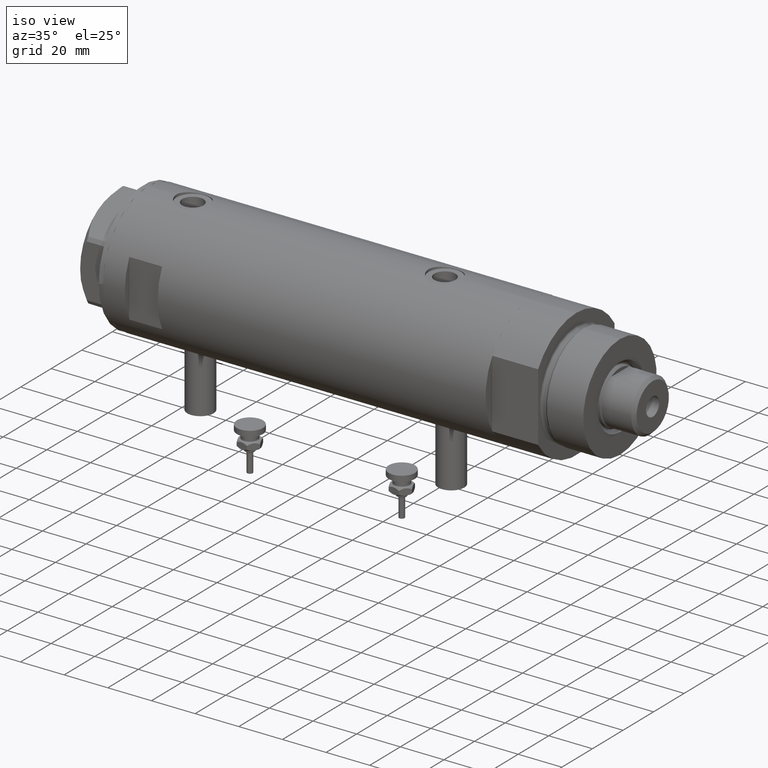
[diagram: clean part render]
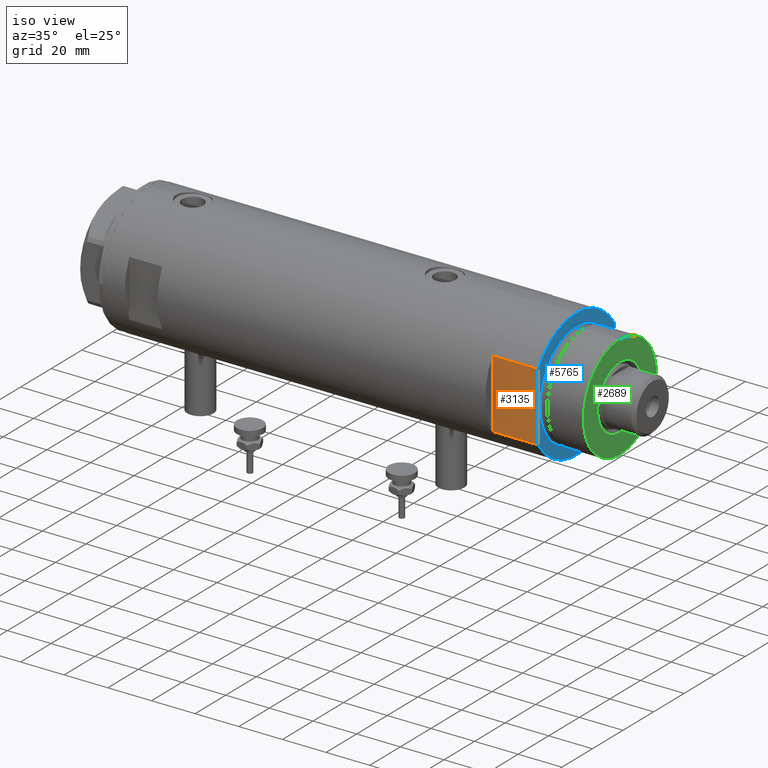
[diagram: same view with three faces highlighted in distinct colors, each labeled with its STEP entity id]
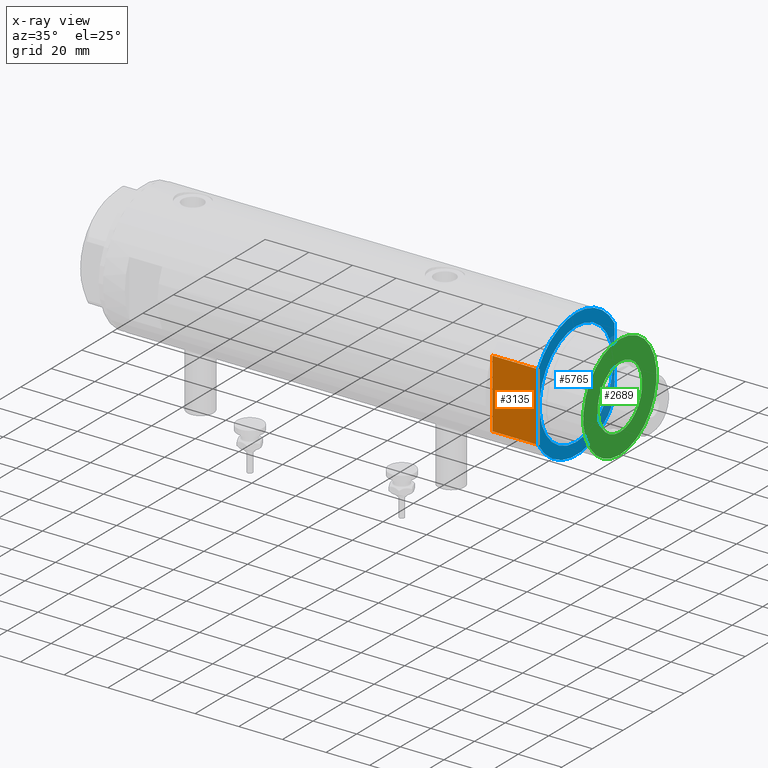
[diagram: x-ray of the same camera — body ghosted, the three highlighted faces saturated]
A machine part, iso view with three faces highlighted in distinct colors.
The next image is the same camera in x-ray (body ghosted, the three faces saturated) — at least one of them is partly hidden behind the body in this view.
Their STEP definitions:

[orange] entity #3135 — the highlighted planar face has unit normal (-0, 1, 0).
#67 = VERTEX_POINT ( 'NONE', #2100 ) ;
#301 = ORIENTED_EDGE ( 'NONE', *, *, #1220, .T. ) ;
#350 = DIRECTION ( 'NONE',  ( -0.000000000000000000, -0.000000000000000000, 1.000000000000000000 ) ) ;
#434 = DIRECTION ( 'NONE',  ( -1.000000000000000000, -0.000000000000000000, -0.000000000000000000 ) ) ;
#689 = CARTESIAN_POINT ( 'NONE',  ( -15.66045976336583045, -24.99999999999999645, 20.99999999999999645 ) ) ;
#732 = DIRECTION ( 'NONE',  ( -1.000000000000000000, -0.000000000000000000, -0.000000000000000000 ) ) ;
#964 = LINE ( 'NONE', #2803, #1106 ) ;
#1106 = VECTOR ( 'NONE', #2715, 1000.000000000000000 ) ;
#1190 = DIRECTION ( 'NONE',  ( -0.000000000000000000, -0.000000000000000000, 1.000000000000000000 ) ) ;
#1220 = EDGE_CURVE ( 'NONE', #67, #3294, #3499, .T. ) ;
#1554 = VECTOR ( 'NONE', #732, 1000.000000000000000 ) ;
#1566 = CARTESIAN_POINT ( 'NONE',  ( -15.66045976336583401, -25.00000000000000000, 0.000000000000000000 ) ) ;
#1618 = PLANE ( 'NONE',  #4810 ) ;
#1673 = CARTESIAN_POINT ( 'NONE',  ( 15.66045976336583401, -25.00000000000000000, 0.000000000000000000 ) ) ;
#2026 = LINE ( 'NONE', #4683, #4710 ) ;
#2100 = CARTESIAN_POINT ( 'NONE',  ( 15.66045976336583045, -25.00000000000000000, 21.00000000000000355 ) ) ;
#2404 = VERTEX_POINT ( 'NONE', #2996 ) ;
#2415 = EDGE_CURVE ( 'NONE', #5177, #2675, #2904, .T. ) ;
#2675 = VERTEX_POINT ( 'NONE', #3764 ) ;
#2715 = DIRECTION ( 'NONE',  ( -1.000000000000000000, -0.000000000000000000, -0.000000000000000000 ) ) ;
#2803 = CARTESIAN_POINT ( 'NONE',  ( -15.66045976336583401, -25.00000000000000000, 0.000000000000000000 ) ) ;
#2840 = ORIENTED_EDGE ( 'NONE', *, *, #5491, .F. ) ;
#2899 = VECTOR ( 'NONE', #350, 1000.000000000000000 ) ;
#2904 = LINE ( 'NONE', #1566, #1554 ) ;
#2996 = CARTESIAN_POINT ( 'NONE',  ( 15.66045976336583401, -25.00000000000000000, 0.000000000000000000 ) ) ;
#3135 = ADVANCED_FACE ( 'NONE', ( #3997 ), #1618, .F. ) ;
#3254 = EDGE_CURVE ( 'NONE', #3497, #5177, #2026, .T. ) ;
#3294 = VERTEX_POINT ( 'NONE', #689 ) ;
#3419 = DIRECTION ( 'NONE',  ( -0.000000000000000000, 1.000000000000000000, 0.000000000000000000 ) ) ;
#3471 = CARTESIAN_POINT ( 'NONE',  ( 7.141428428542853091, -25.00000000000000000, 0.000000000000000000 ) ) ;
#3473 = ORIENTED_EDGE ( 'NONE', *, *, #3494, .T. ) ;
#3494 = EDGE_CURVE ( 'NONE', #2404, #67, #3918, .T. ) ;
#3497 = VERTEX_POINT ( 'NONE', #3471 ) ;
#3499 = LINE ( 'NONE', #4521, #3635 ) ;
#3635 = VECTOR ( 'NONE', #434, 1000.000000000000000 ) ;
#3764 = CARTESIAN_POINT ( 'NONE',  ( -15.66045976336582690, -25.00000000000000000, 0.000000000000000000 ) ) ;
#3768 = VECTOR ( 'NONE', #1190, 1000.000000000000000 ) ;
#3918 = LINE ( 'NONE', #1673, #2899 ) ;
#3997 = FACE_OUTER_BOUND ( 'NONE', #4423, .T. ) ;
#4244 = DIRECTION ( 'NONE',  ( -1.000000000000000000, -0.000000000000000000, -0.000000000000000000 ) ) ;
#4350 = CARTESIAN_POINT ( 'NONE',  ( -15.66045976336583401, -25.00000000000000000, 0.000000000000000000 ) ) ;
#4423 = EDGE_LOOP ( 'NONE', ( #301, #5119, #4774, #4795, #2840, #3473 ) ) ;
#4521 = CARTESIAN_POINT ( 'NONE',  ( -15.66045976336583401, -25.00000000000000000, 21.00000000000000000 ) ) ;
#4601 = DIRECTION ( 'NONE',  ( 0.000000000000000000, -0.000000000000000000, 1.000000000000000000 ) ) ;
#4683 = CARTESIAN_POINT ( 'NONE',  ( -15.66045976336583401, -25.00000000000000000, 0.000000000000000000 ) ) ;
#4710 = VECTOR ( 'NONE', #4244, 1000.000000000000000 ) ;
#4774 = ORIENTED_EDGE ( 'NONE', *, *, #2415, .F. ) ;
#4795 = ORIENTED_EDGE ( 'NONE', *, *, #3254, .F. ) ;
#4810 = AXIS2_PLACEMENT_3D ( 'NONE', #5843, #3419, #4601 ) ;
#4853 = CARTESIAN_POINT ( 'NONE',  ( -7.141428428542853091, -25.00000000000000000, 0.000000000000000000 ) ) ;
#4866 = LINE ( 'NONE', #4350, #3768 ) ;
#5119 = ORIENTED_EDGE ( 'NONE', *, *, #5664, .F. ) ;
#5177 = VERTEX_POINT ( 'NONE', #4853 ) ;
#5491 = EDGE_CURVE ( 'NONE', #2404, #3497, #964, .T. ) ;
#5664 = EDGE_CURVE ( 'NONE', #2675, #3294, #4866, .T. ) ;
#5843 = CARTESIAN_POINT ( 'NONE',  ( -15.66045976336583401, -25.00000000000000000, 0.000000000000000000 ) ) ;

[blue] entity #5765 — the highlighted planar face has unit normal (1, 0, -0).
#67 = VERTEX_POINT ( 'NONE', #2100 ) ;
#184 = CARTESIAN_POINT ( 'NONE',  ( -15.66045976336583401, 25.00000000000000000, 21.00000000000000000 ) ) ;
#434 = DIRECTION ( 'NONE',  ( -1.000000000000000000, -0.000000000000000000, -0.000000000000000000 ) ) ;
#467 = CARTESIAN_POINT ( 'NONE',  ( 0.000000000000000000, 0.000000000000000000, 21.00000000000000000 ) ) ;
#626 = VERTEX_POINT ( 'NONE', #1390 ) ;
#689 = CARTESIAN_POINT ( 'NONE',  ( -15.66045976336583045, -24.99999999999999645, 20.99999999999999645 ) ) ;
#988 = AXIS2_PLACEMENT_3D ( 'NONE', #2884, #5194, #4349 ) ;
#1048 = ORIENTED_EDGE ( 'NONE', *, *, #2560, .F. ) ;
#1130 = CARTESIAN_POINT ( 'NONE',  ( 15.66045976336583045, 24.99999999999999645, 20.99999999999999645 ) ) ;
#1220 = EDGE_CURVE ( 'NONE', #67, #3294, #3499, .T. ) ;
#1303 = CIRCLE ( 'NONE', #2724, 29.50000000000000355 ) ;
#1334 = ORIENTED_EDGE ( 'NONE', *, *, #4701, .T. ) ;
#1378 = CARTESIAN_POINT ( 'NONE',  ( 0.000000000000000000, 0.000000000000000000, 21.00000000000000000 ) ) ;
#1390 = CARTESIAN_POINT ( 'NONE',  ( -29.50000000000000355, 0.000000000000000000, 21.00000000000000000 ) ) ;
#1503 = ORIENTED_EDGE ( 'NONE', *, *, #5011, .T. ) ;
#1641 = CARTESIAN_POINT ( 'NONE',  ( 24.00000000000000000, 0.000000000000000000, 21.00000000000000000 ) ) ;
#1682 = CIRCLE ( 'NONE', #4335, 24.00000000000000000 ) ;
#1769 = EDGE_CURVE ( 'NONE', #626, #3294, #2114, .T. ) ;
#2027 = EDGE_LOOP ( 'NONE', ( #5552, #1503 ) ) ;
#2100 = CARTESIAN_POINT ( 'NONE',  ( 15.66045976336583045, -25.00000000000000000, 21.00000000000000355 ) ) ;
#2114 = CIRCLE ( 'NONE', #988, 29.50000000000000355 ) ;
#2345 = FACE_BOUND ( 'NONE', #2027, .T. ) ;
#2431 = AXIS2_PLACEMENT_3D ( 'NONE', #3734, #3304, #4756 ) ;
#2560 = EDGE_CURVE ( 'NONE', #5126, #2922, #5911, .T. ) ;
#2699 = DIRECTION ( 'NONE',  ( 1.000000000000000000, 0.000000000000000000, -0.000000000000000000 ) ) ;
#2719 = EDGE_LOOP ( 'NONE', ( #5486, #1334, #1048, #4459, #4623 ) ) ;
#2724 = AXIS2_PLACEMENT_3D ( 'NONE', #467, #3677, #5546 ) ;
#2766 = DIRECTION ( 'NONE',  ( 1.000000000000000000, 0.000000000000000000, 0.000000000000000000 ) ) ;
#2860 = DIRECTION ( 'NONE',  ( -0.000000000000000000, -0.000000000000000000, -1.000000000000000000 ) ) ;
#2884 = CARTESIAN_POINT ( 'NONE',  ( 0.000000000000000000, 0.000000000000000000, 21.00000000000000000 ) ) ;
#2922 = VERTEX_POINT ( 'NONE', #1130 ) ;
#2985 = CARTESIAN_POINT ( 'NONE',  ( -24.00000000000000000, 2.939152317953647894E-15, 21.00000000000000000 ) ) ;
#3161 = DIRECTION ( 'NONE',  ( 0.000000000000000000, 0.000000000000000000, 1.000000000000000000 ) ) ;
#3202 = DIRECTION ( 'NONE',  ( 0.000000000000000000, 0.000000000000000000, 1.000000000000000000 ) ) ;
#3225 = CARTESIAN_POINT ( 'NONE',  ( 0.000000000000000000, 0.000000000000000000, 21.00000000000000000 ) ) ;
#3294 = VERTEX_POINT ( 'NONE', #689 ) ;
#3304 = DIRECTION ( 'NONE',  ( -0.000000000000000000, -0.000000000000000000, -1.000000000000000000 ) ) ;
#3318 = VERTEX_POINT ( 'NONE', #2985 ) ;
#3394 = DIRECTION ( 'NONE',  ( 1.000000000000000000, 0.000000000000000000, 0.000000000000000000 ) ) ;
#3420 = CARTESIAN_POINT ( 'NONE',  ( 0.000000000000000000, 0.000000000000000000, 21.00000000000000000 ) ) ;
#3499 = LINE ( 'NONE', #4521, #3635 ) ;
#3635 = VECTOR ( 'NONE', #434, 1000.000000000000000 ) ;
#3655 = CIRCLE ( 'NONE', #5108, 29.50000000000000355 ) ;
#3677 = DIRECTION ( 'NONE',  ( 0.000000000000000000, 0.000000000000000000, 1.000000000000000000 ) ) ;
#3734 = CARTESIAN_POINT ( 'NONE',  ( 0.000000000000000000, 0.000000000000000000, 21.00000000000000000 ) ) ;
#3810 = EDGE_CURVE ( 'NONE', #5629, #3318, #1682, .T. ) ;
#4160 = FACE_OUTER_BOUND ( 'NONE', #2719, .T. ) ;
#4335 = AXIS2_PLACEMENT_3D ( 'NONE', #3420, #2860, #3394 ) ;
#4349 = DIRECTION ( 'NONE',  ( 1.000000000000000000, 0.000000000000000000, 0.000000000000000000 ) ) ;
#4443 = AXIS2_PLACEMENT_3D ( 'NONE', #3225, #3161, #2699 ) ;
#4459 = ORIENTED_EDGE ( 'NONE', *, *, #5266, .T. ) ;
#4463 = DIRECTION ( 'NONE',  ( 1.000000000000000000, 0.000000000000000000, 0.000000000000000000 ) ) ;
#4521 = CARTESIAN_POINT ( 'NONE',  ( -15.66045976336583401, -25.00000000000000000, 21.00000000000000000 ) ) ;
#4623 = ORIENTED_EDGE ( 'NONE', *, *, #1769, .T. ) ;
#4701 = EDGE_CURVE ( 'NONE', #67, #2922, #3655, .T. ) ;
#4756 = DIRECTION ( 'NONE',  ( 1.000000000000000000, 0.000000000000000000, 0.000000000000000000 ) ) ;
#4828 = CIRCLE ( 'NONE', #2431, 24.00000000000000000 ) ;
#5011 = EDGE_CURVE ( 'NONE', #3318, #5629, #4828, .T. ) ;
#5098 = VECTOR ( 'NONE', #4463, 1000.000000000000000 ) ;
#5108 = AXIS2_PLACEMENT_3D ( 'NONE', #1378, #3202, #2766 ) ;
#5126 = VERTEX_POINT ( 'NONE', #5186 ) ;
#5186 = CARTESIAN_POINT ( 'NONE',  ( -15.66045976336583045, 24.99999999999999645, 21.00000000000000355 ) ) ;
#5194 = DIRECTION ( 'NONE',  ( 0.000000000000000000, 0.000000000000000000, 1.000000000000000000 ) ) ;
#5266 = EDGE_CURVE ( 'NONE', #5126, #626, #1303, .T. ) ;
#5441 = PLANE ( 'NONE',  #4443 ) ;
#5486 = ORIENTED_EDGE ( 'NONE', *, *, #1220, .F. ) ;
#5546 = DIRECTION ( 'NONE',  ( 1.000000000000000000, 0.000000000000000000, 0.000000000000000000 ) ) ;
#5552 = ORIENTED_EDGE ( 'NONE', *, *, #3810, .T. ) ;
#5629 = VERTEX_POINT ( 'NONE', #1641 ) ;
#5765 = ADVANCED_FACE ( 'NONE', ( #2345, #4160 ), #5441, .T. ) ;
#5911 = LINE ( 'NONE', #184, #5098 ) ;

[green] entity #2689 — the highlighted planar face has unit normal (1, 0, -0).
#49 = ORIENTED_EDGE ( 'NONE', *, *, #389, .T. ) ;
#104 = ORIENTED_EDGE ( 'NONE', *, *, #5731, .T. ) ;
#340 = EDGE_CURVE ( 'NONE', #2502, #4133, #4497, .T. ) ;
#389 = EDGE_CURVE ( 'NONE', #3131, #2147, #2292, .T. ) ;
#631 = CIRCLE ( 'NONE', #2720, 14.54999999999997939 ) ;
#672 = DIRECTION ( 'NONE',  ( 1.000000000000000000, 0.000000000000000000, 0.000000000000000000 ) ) ;
#773 = CARTESIAN_POINT ( 'NONE',  ( -14.54999999999997939, 1.781861092759396721E-15, 41.00000000000000000 ) ) ;
#775 = AXIS2_PLACEMENT_3D ( 'NONE', #1043, #2852, #672 ) ;
#796 = DIRECTION ( 'NONE',  ( 1.000000000000000000, 0.000000000000000000, 0.000000000000000000 ) ) ;
#956 = EDGE_LOOP ( 'NONE', ( #49, #4087 ) ) ;
#1029 = FACE_BOUND ( 'NONE', #3835, .T. ) ;
#1043 = CARTESIAN_POINT ( 'NONE',  ( 0.000000000000000000, 0.000000000000000000, 41.00000000000000000 ) ) ;
#1086 = CIRCLE ( 'NONE', #2597, 24.00000000000000355 ) ;
#1114 = DIRECTION ( 'NONE',  ( 1.000000000000000000, 0.000000000000000000, -0.000000000000000000 ) ) ;
#1481 = FACE_OUTER_BOUND ( 'NONE', #956, .T. ) ;
#1507 = DIRECTION ( 'NONE',  ( 0.000000000000000000, 0.000000000000000000, 1.000000000000000000 ) ) ;
#1533 = CARTESIAN_POINT ( 'NONE',  ( 0.000000000000000000, 0.000000000000000000, 41.00000000000000000 ) ) ;
#1685 = DIRECTION ( 'NONE',  ( 1.000000000000000000, 0.000000000000000000, 0.000000000000000000 ) ) ;
#2003 = PLANE ( 'NONE',  #3940 ) ;
#2147 = VERTEX_POINT ( 'NONE', #3414 ) ;
#2292 = CIRCLE ( 'NONE', #5647, 24.00000000000000355 ) ;
#2399 = DIRECTION ( 'NONE',  ( 0.000000000000000000, 0.000000000000000000, 1.000000000000000000 ) ) ;
#2502 = VERTEX_POINT ( 'NONE', #2657 ) ;
#2597 = AXIS2_PLACEMENT_3D ( 'NONE', #5231, #3512, #1685 ) ;
#2657 = CARTESIAN_POINT ( 'NONE',  ( 14.54999999999997939, 0.000000000000000000, 41.00000000000000000 ) ) ;
#2689 = ADVANCED_FACE ( 'NONE', ( #1029, #1481 ), #2003, .T. ) ;
#2720 = AXIS2_PLACEMENT_3D ( 'NONE', #5729, #3069, #796 ) ;
#2852 = DIRECTION ( 'NONE',  ( -0.000000000000000000, -0.000000000000000000, -1.000000000000000000 ) ) ;
#3069 = DIRECTION ( 'NONE',  ( -0.000000000000000000, -0.000000000000000000, -1.000000000000000000 ) ) ;
#3131 = VERTEX_POINT ( 'NONE', #5706 ) ;
#3414 = CARTESIAN_POINT ( 'NONE',  ( 24.00000000000000355, 2.939152317953648289E-15, 41.00000000000000000 ) ) ;
#3512 = DIRECTION ( 'NONE',  ( 0.000000000000000000, 0.000000000000000000, 1.000000000000000000 ) ) ;
#3671 = ORIENTED_EDGE ( 'NONE', *, *, #340, .T. ) ;
#3797 = CARTESIAN_POINT ( 'NONE',  ( 0.000000000000000000, 0.000000000000000000, 41.00000000000000000 ) ) ;
#3835 = EDGE_LOOP ( 'NONE', ( #3671, #104 ) ) ;
#3940 = AXIS2_PLACEMENT_3D ( 'NONE', #1533, #1507, #1114 ) ;
#4087 = ORIENTED_EDGE ( 'NONE', *, *, #4106, .T. ) ;
#4106 = EDGE_CURVE ( 'NONE', #2147, #3131, #1086, .T. ) ;
#4133 = VERTEX_POINT ( 'NONE', #773 ) ;
#4228 = DIRECTION ( 'NONE',  ( 1.000000000000000000, 0.000000000000000000, 0.000000000000000000 ) ) ;
#4497 = CIRCLE ( 'NONE', #775, 14.54999999999997939 ) ;
#5231 = CARTESIAN_POINT ( 'NONE',  ( 0.000000000000000000, 0.000000000000000000, 41.00000000000000000 ) ) ;
#5647 = AXIS2_PLACEMENT_3D ( 'NONE', #3797, #2399, #4228 ) ;
#5706 = CARTESIAN_POINT ( 'NONE',  ( -24.00000000000000355, 0.000000000000000000, 41.00000000000000000 ) ) ;
#5729 = CARTESIAN_POINT ( 'NONE',  ( 0.000000000000000000, 0.000000000000000000, 41.00000000000000000 ) ) ;
#5731 = EDGE_CURVE ( 'NONE', #4133, #2502, #631, .T. ) ;